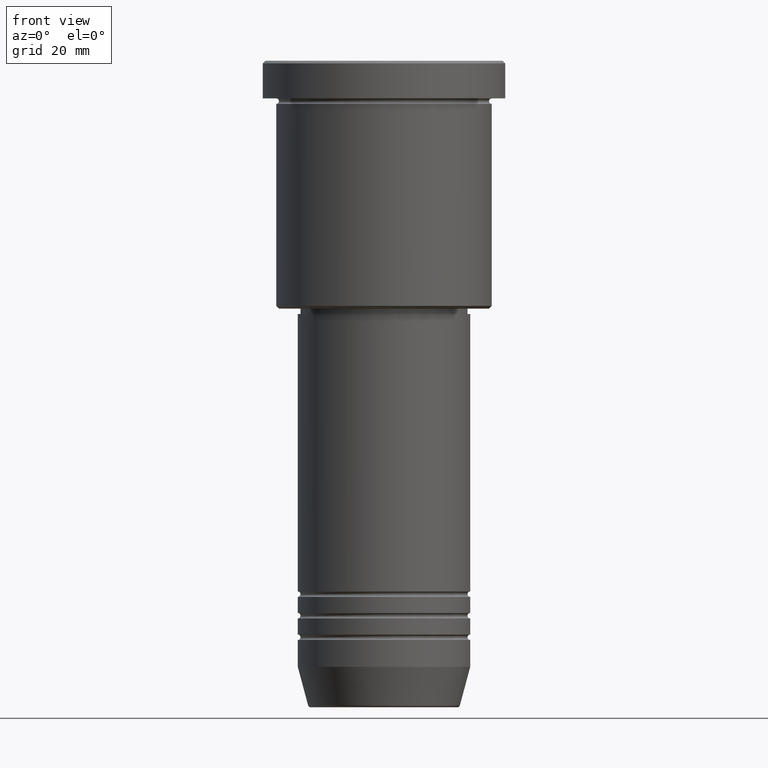
[diagram: clean part render]
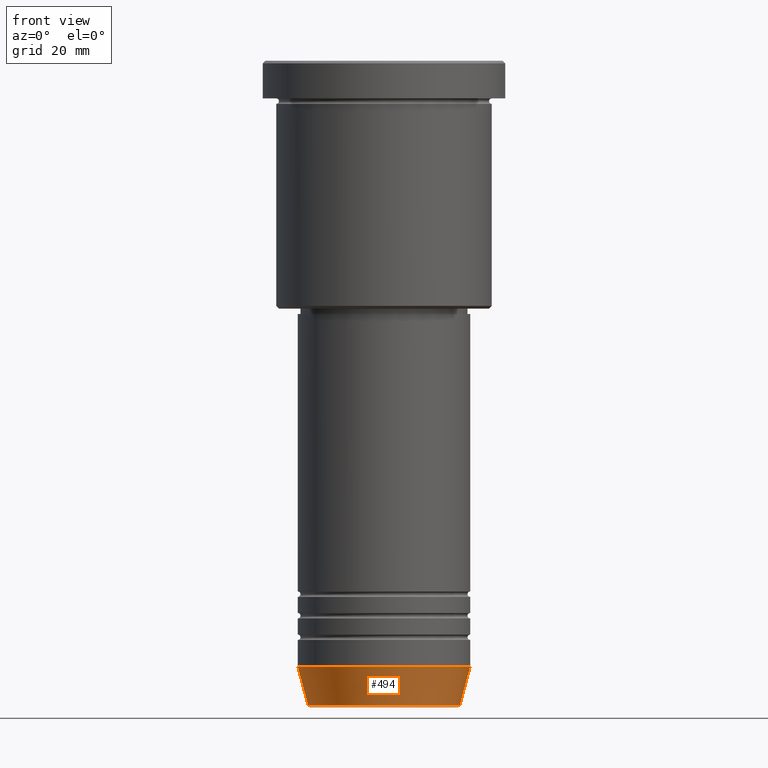
[diagram: same view with one face highlighted and labeled with its STEP entity id]
A machine part, front view. The second image highlights one B-rep face of the part: STEP entity #494.
In plain terms, the highlighted conical surface has half-angle 15 deg.
Its self-contained STEP definition (entity closure, byte-faithful):
#41 = EDGE_CURVE ( 'NONE', #976, #264, #220, .T. ) ;
#93 = EDGE_CURVE ( 'NONE', #641, #264, #283, .T. ) ;
#220 = LINE ( 'NONE', #1001, #857 ) ;
#223 = CARTESIAN_POINT ( 'NONE',  ( 0.000000000000000000, 0.000000000000000000, -119.6294095225512564 ) ) ;
#264 = VERTEX_POINT ( 'NONE', #660 ) ;
#266 = EDGE_CURVE ( 'NONE', #806, #976, #486, .T. ) ;
#280 = CARTESIAN_POINT ( 'NONE',  ( -14.08968047592162698, 1.842461544110201269E-15, -119.6294095225512564 ) ) ;
#283 = CIRCLE ( 'NONE', #316, 16.00000000000000000 ) ;
#316 = AXIS2_PLACEMENT_3D ( 'NONE', #1025, #573, #483 ) ;
#470 = VECTOR ( 'NONE', #594, 1000.000000000000000 ) ;
#483 = DIRECTION ( 'NONE',  ( 1.000000000000000000, 0.000000000000000000, 0.000000000000000000 ) ) ;
#486 = CIRCLE ( 'NONE', #1056, 14.08968047592162698 ) ;
#494 = ADVANCED_FACE ( 'NONE', ( #878 ), #562, .T. ) ;
#547 = CARTESIAN_POINT ( 'NONE',  ( 0.000000000000000000, 0.000000000000000000, -112.4999999999999858 ) ) ;
#562 = CONICAL_SURFACE ( 'NONE', #1112, 16.00000000000000000, 0.2617993877991500740 ) ;
#569 = DIRECTION ( 'NONE',  ( 0.2588190451025213501, 0.000000000000000000, 0.9659258262890680902 ) ) ;
#573 = DIRECTION ( 'NONE',  ( -0.000000000000000000, -0.000000000000000000, 1.000000000000000000 ) ) ;
#594 = DIRECTION ( 'NONE',  ( -0.2588190451025213501, 3.169619151431772337E-17, 0.9659258262890680902 ) ) ;
#610 = ORIENTED_EDGE ( 'NONE', *, *, #41, .T. ) ;
#613 = CARTESIAN_POINT ( 'NONE',  ( -16.00000000000000000, 1.959434878635765131E-15, -112.4999999999999858 ) ) ;
#641 = VERTEX_POINT ( 'NONE', #613 ) ;
#660 = CARTESIAN_POINT ( 'NONE',  ( 16.00000000000000000, 0.000000000000000000, -112.4999999999999858 ) ) ;
#666 = DIRECTION ( 'NONE',  ( 1.000000000000000000, 0.000000000000000000, 0.000000000000000000 ) ) ;
#681 = ORIENTED_EDGE ( 'NONE', *, *, #266, .T. ) ;
#776 = EDGE_CURVE ( 'NONE', #806, #641, #849, .T. ) ;
#806 = VERTEX_POINT ( 'NONE', #280 ) ;
#849 = LINE ( 'NONE', #941, #470 ) ;
#857 = VECTOR ( 'NONE', #569, 1000.000000000000000 ) ;
#878 = FACE_OUTER_BOUND ( 'NONE', #906, .T. ) ;
#906 = EDGE_LOOP ( 'NONE', ( #1170, #681, #610, #1027 ) ) ;
#941 = CARTESIAN_POINT ( 'NONE',  ( -16.00000000000000000, 1.959434878635765131E-15, -112.4999999999999858 ) ) ;
#976 = VERTEX_POINT ( 'NONE', #1147 ) ;
#979 = DIRECTION ( 'NONE',  ( -0.000000000000000000, -0.000000000000000000, 1.000000000000000000 ) ) ;
#1001 = CARTESIAN_POINT ( 'NONE',  ( 16.00000000000000000, 0.000000000000000000, -112.4999999999999858 ) ) ;
#1025 = CARTESIAN_POINT ( 'NONE',  ( 0.000000000000000000, 0.000000000000000000, -112.4999999999999858 ) ) ;
#1027 = ORIENTED_EDGE ( 'NONE', *, *, #93, .F. ) ;
#1041 = DIRECTION ( 'NONE',  ( -0.000000000000000000, -0.000000000000000000, 1.000000000000000000 ) ) ;
#1056 = AXIS2_PLACEMENT_3D ( 'NONE', #223, #1041, #666 ) ;
#1112 = AXIS2_PLACEMENT_3D ( 'NONE', #547, #979, #1177 ) ;
#1147 = CARTESIAN_POINT ( 'NONE',  ( 14.08968047592162698, 0.000000000000000000, -119.6294095225512564 ) ) ;
#1170 = ORIENTED_EDGE ( 'NONE', *, *, #776, .F. ) ;
#1177 = DIRECTION ( 'NONE',  ( 1.000000000000000000, 0.000000000000000000, 0.000000000000000000 ) ) ;